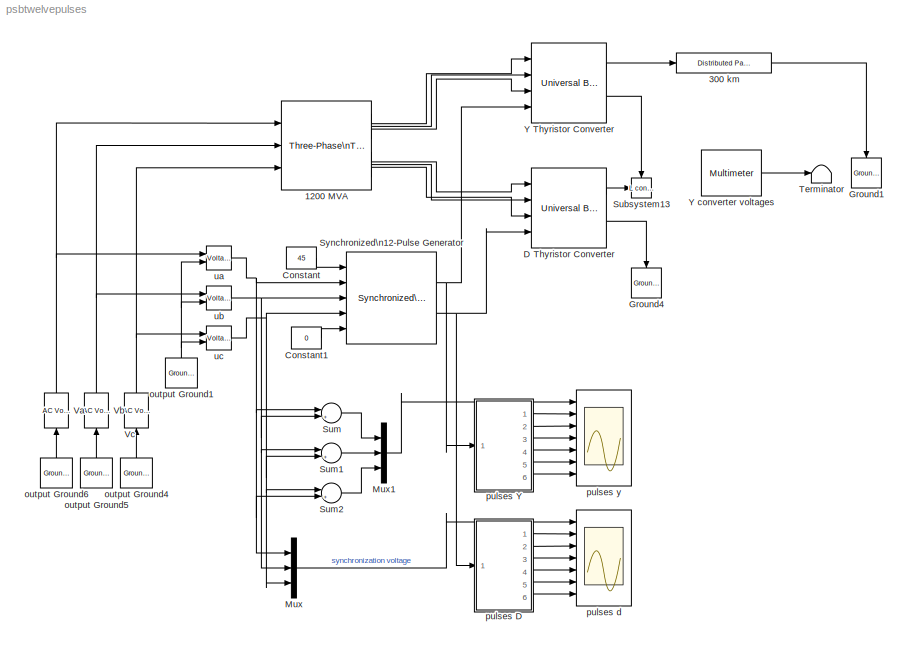
MODEL psbtwelvepulses
KIND model
CONFIG InitFcn = powericon('psbinitsys',bdroot);
BLOCK [Reference]  Synchronized\n12-Pulse Generator  REF=powerlib_extras/Control \nBlocks/ Synchronized\n12-Pulse Generator
  Double_Pulse = off
  Ports = [5, 2]
  SourceBlock = powerlib_extras/Control \nBlocks/ Synchronized\n12-Pulse Generator
  SourceType = Synchronized 12-pulse generator
  freq = 60
  pwidth = 20
BLOCK [Reference] 1200 MVA  REF=powerlib2/Elements/Three-Phase\nTransformer\n(Three Windings)
  PSBOutputType = 111111
  Ports = [3, 6]
  SourceBlock = powerlib2/Elements/Three-Phase\nTransformer\n(Three Windings)
  SourceType = Three-Phase Transformer (Three Windings)
  Tag = PoWeRsYsTeMbLoCk
  confi = ABC as input terminals
  hyst = off
  ifl = [0.8 -0.8 0.7]
  initialslopes = [+1 +1 +1]
  lm = 500
  matfile = 'basic_model'
  mesure = None
  nom = [ 1200e6 , 60 ]
  rmag = 500
  sat = [0 0; 1 1.2; 2 1.1]
  sif = off
  w1 = [ 500e3 0  0 ]
  w2 = [ 200e3 0 0]
  w3 = [ 200e3 0.001 0]
  ydw1 = Yg
  ydw2 = Y
  ydw3 = Delta (D1)
  ynsat = off
BLOCK [Reference] 300 km  REF=powerlib2/Elements/Distributed Parameters Line
  PSBOutputType = 111111111111111111111111111111
  Ports = [1, 1]
  SourceBlock = powerlib2/Elements/Distributed Parameters Line
  SourceType = Distributed Parameters Line
  Tag = PoWeRsYsTeMbLoCk
  c = 14.4e-9
  f = 60
  l = 0.792e-3
  lgt = 300
  mesure = Phase-to-ground voltages
  n = 1
  r = 0.015
  x1 = [0 0 0 0; 0.0001244 0 0 0; 0.0002488 0 0 0; 0.0003733 0 0 0; 0.0004977 0 0 0; 0.0006221 0 0 0]
  x2 = [0 0 0 0; 0.0001244 0 0 0; 0.0002488 0 0 0; 0.0003733 0 0 0; 0.0004977 0 0 0; 0.0006221 0 0 0]
  x3 = [0 0 0 0; 0.0001244 0 0 0; 0.0002488 0 0 0; 0.0003733 0 0 0; 0.0004977 0 0 0; 0.0006221 0 0 0]
  x4 = [0 0 0 0; 0.0001244 0 0 0; 0.0002488 0 0 0; 0.0003733 0 0 0; 0.0004977 0 0 0; 0.0006221 0 0 0]
  x5 = 0
BLOCK [Constant] Constant
  Value = 45
BLOCK [Constant] Constant1
  Value = 0
BLOCK [Reference] D Thyristor Converter  REF=powerlib2/Power\nElectronics/Universal Bridge
  Lon = 0
  PSBOutputType = 111
  Ports = [4, 2]
  Ron = 1e-3
  SourceBlock = powerlib2/Power\nElectronics/Universal Bridge
  SourceType = Universal Bridge
  Tag = PoWeRsYsTeMbLoCk
  VFs = [  0.8  0.8  ]
  Vf = 0
  arms = 3
  cf = inf
  confi = ABC as input terminals
  device = Thyristors
  gtoparameters = [ 10e-6 , 20e-6 ]
  igbtparameters = [ 1e-6 , 2e-6 ]
  injcc = 2000
  mesure = All voltages and currents
BLOCK [Reference] Ground1  REF=powerlib2/Connectors/Ground (input)
  Ports = [1]
  SourceBlock = powerlib2/Connectors/Ground (input)
  SourceType = Ground
  Tag = PoWeRsYsTeMbLoCk
BLOCK [Reference] Ground4  REF=powerlib2/Connectors/Ground (input)
  Ports = [1]
  SourceBlock = powerlib2/Connectors/Ground (input)
  SourceType = Ground
  Tag = PoWeRsYsTeMbLoCk
BLOCK [Mux] Mux
  DisplayOption = bar
  Inputs = 3
  Ports = [3, 1]
BLOCK [Mux] Mux1
  DisplayOption = bar
  Inputs = 3
  Ports = [3, 1]
BLOCK [Reference] Subsystem13  REF=powerlib2/Connectors/L connector
  Ports = [1, 0, 1]
  SourceBlock = powerlib2/Connectors/L connector
  SourceType = Bus Bar
  Tag = PoWeRsYsTeMbLoCk
BLOCK [Sum] Sum
  IconShape = round
  Inputs = |+-
  Ports = [2, 1]
BLOCK [Sum] Sum1
  IconShape = round
  Inputs = |+-
  Ports = [2, 1]
BLOCK [Sum] Sum2
  IconShape = round
  Inputs = |+-
  Ports = [2, 1]
BLOCK [Terminator] Terminator
BLOCK [Reference] Va  REF=powerlib2/Electrical\nSources/AC Voltage Source
  A = 500e3/sqrt(3)*sqrt(2)
  F = 60
  P = 0
  PSBOutputType = 1
  Ports = [1, 1]
  SourceBlock = powerlib2/Electrical\nSources/AC Voltage Source
  SourceType = AC Voltage Source
  Tag = PoWeRsYsTeMbLoCk
  mesure = None
  stime = 0
BLOCK [Reference] Vb  REF=powerlib2/Electrical\nSources/AC Voltage Source
  A = 500e3/sqrt(3)*sqrt(2)
  F = 60
  P = -120
  PSBOutputType = 1
  Ports = [1, 1]
  SourceBlock = powerlib2/Electrical\nSources/AC Voltage Source
  SourceType = AC Voltage Source
  Tag = PoWeRsYsTeMbLoCk
  mesure = None
  stime = 0
BLOCK [Reference] Vc  REF=powerlib2/Electrical\nSources/AC Voltage Source
  A = 500e3/sqrt(3)*sqrt(2)
  F = 60
  P = 120
  PSBOutputType = 1
  Ports = [1, 1]
  SourceBlock = powerlib2/Electrical\nSources/AC Voltage Source
  SourceType = AC Voltage Source
  Tag = PoWeRsYsTeMbLoCk
  mesure = None
  stime = 0
BLOCK [Reference] Y Thyristor Converter  REF=powerlib2/Power\nElectronics/Universal Bridge
  Lon = 0
  PSBOutputType = 111
  Ports = [4, 2]
  Ron = 1e-3
  SourceBlock = powerlib2/Power\nElectronics/Universal Bridge
  SourceType = Universal Bridge
  Tag = PoWeRsYsTeMbLoCk
  VFs = [  0.8  0.8  ]
  Vf = 0
  arms = 3
  cf = .1e-6
  confi = ABC as input terminals
  device = Thyristors
  gtoparameters = [ 10e-6 , 20e-6 ]
  igbtparameters = [ 1e-6 , 2e-6 ]
  injcc = 2000
  mesure = All voltages and currents
BLOCK [Reference] Y converter voltages   REF=powerlib2/Measurements/Multimeter
  AxesSetting = [0,0.1,-100,100]
  Display = 1
  Gain = [-1 -1 -1 -1 -1 -1 1]
  L = 32
  OutputType = Magnitude
  PSBOutputType = 1
  PSBequivalent = 0
  PhasorSimulation = off
  Ports = [0, 1]
  SavedBlockNames = -11
  SourceBlock = powerlib2/Measurements/Multimeter
  SourceType = MultimeterPSB
  Tag = PoWeRsYsTeMmEaSuReMeNt
  sel = [1 2 3 4 5 6 19]
  yselected = {'Usw1: D Thyristor Converter','Usw2: D Thyristor Converter','Usw3: D Thyristor Converter','Usw4: D Thyristor Converter','Usw5: D Thyristor Converter','Usw6: D Thyristor Converter','Us_ph1_gnd: 300 km'};
BLOCK [Reference] output Ground1  REF=powerlib2/Connectors/Ground (output)
  PSBOutputType = 1
  Ports = [0, 1]
  SourceBlock = powerlib2/Connectors/Ground (output)
  SourceType = Ground
  Tag = PoWeRsYsTeMbLoCk
BLOCK [Reference] output Ground4  REF=powerlib2/Connectors/Ground (output)
  PSBOutputType = 1
  Ports = [0, 1]
  SourceBlock = powerlib2/Connectors/Ground (output)
  SourceType = Ground
  Tag = PoWeRsYsTeMbLoCk
BLOCK [Reference] output Ground5  REF=powerlib2/Connectors/Ground (output)
  PSBOutputType = 1
  Ports = [0, 1]
  SourceBlock = powerlib2/Connectors/Ground (output)
  SourceType = Ground
  Tag = PoWeRsYsTeMbLoCk
BLOCK [Reference] output Ground6  REF=powerlib2/Connectors/Ground (output)
  PSBOutputType = 1
  Ports = [0, 1]
  SourceBlock = powerlib2/Connectors/Ground (output)
  SourceType = Ground
  Tag = PoWeRsYsTeMbLoCk
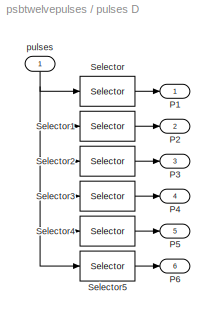
BLOCK [SubSystem] pulses D
  MinAlgLoopOccurrences = off
  Ports = [1, 6]
  RTWSystemCode = Auto
  TreatAsAtomicUnit = off
BLOCK [Outport] pulses D/P1
  IconDisplay = Port number
BLOCK [Outport] pulses D/P2
  IconDisplay = Port number
  Port = 2
BLOCK [Outport] pulses D/P3
  IconDisplay = Port number
  Port = 3
BLOCK [Outport] pulses D/P4
  IconDisplay = Port number
  Port = 4
BLOCK [Outport] pulses D/P5
  IconDisplay = Port number
  Port = 5
BLOCK [Outport] pulses D/P6
  IconDisplay = Port number
  Port = 6
BLOCK [Selector] pulses D/Selector
  InputPortWidth = 6
  Ports = [1, 1]
BLOCK [Selector] pulses D/Selector1
  Elements = 2
  InputPortWidth = 6
  Ports = [1, 1]
BLOCK [Selector] pulses D/Selector2
  Elements = 3
  InputPortWidth = 6
  Ports = [1, 1]
BLOCK [Selector] pulses D/Selector3
  Elements = 4
  InputPortWidth = 6
  Ports = [1, 1]
BLOCK [Selector] pulses D/Selector4
  Elements = 5
  InputPortWidth = 6
  Ports = [1, 1]
BLOCK [Selector] pulses D/Selector5
  Elements = 6
  InputPortWidth = 6
  Ports = [1, 1]
BLOCK [Inport] pulses D/pulses
  IconDisplay = Port number
  LatchInput = off
  Port = 1
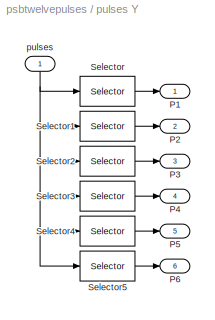
BLOCK [SubSystem] pulses Y
  MinAlgLoopOccurrences = off
  Ports = [1, 6]
  RTWSystemCode = Auto
  TreatAsAtomicUnit = off
BLOCK [Outport] pulses Y/P1
  IconDisplay = Port number
BLOCK [Outport] pulses Y/P2
  IconDisplay = Port number
  Port = 2
BLOCK [Outport] pulses Y/P3
  IconDisplay = Port number
  Port = 3
BLOCK [Outport] pulses Y/P4
  IconDisplay = Port number
  Port = 4
BLOCK [Outport] pulses Y/P5
  IconDisplay = Port number
  Port = 5
BLOCK [Outport] pulses Y/P6
  IconDisplay = Port number
  Port = 6
BLOCK [Selector] pulses Y/Selector
  InputPortWidth = 6
  Ports = [1, 1]
BLOCK [Selector] pulses Y/Selector1
  Elements = 2
  InputPortWidth = 6
  Ports = [1, 1]
BLOCK [Selector] pulses Y/Selector2
  Elements = 3
  InputPortWidth = 6
  Ports = [1, 1]
BLOCK [Selector] pulses Y/Selector3
  Elements = 4
  InputPortWidth = 6
  Ports = [1, 1]
BLOCK [Selector] pulses Y/Selector4
  Elements = 5
  InputPortWidth = 6
  Ports = [1, 1]
BLOCK [Selector] pulses Y/Selector5
  Elements = 6
  InputPortWidth = 6
  Ports = [1, 1]
BLOCK [Inport] pulses Y/pulses
  IconDisplay = Port number
  LatchInput = off
  Port = 1
BLOCK [Scope] pulses d
  DataFormat = StructureWithTime
  LimitDataPoints = off
  NumInputPorts = 7
  Ports = [7]
  SampleInput = on
  SampleTime = 1/60/512
  SaveName = VI_scope1
  SaveToWorkspace = on
  TimeRange = 0.035
  YMax = 500000~1~1~1~1~1~1
  YMin = -500000~0~0~0~0~0~0
  ZoomMode = xonly
BLOCK [Scope] pulses y
  DataFormat = StructureWithTime
  LimitDataPoints = off
  NumInputPorts = 7
  Ports = [7]
  SampleInput = on
  SampleTime = 1/60/512
  SaveName = VI_scope
  SaveToWorkspace = on
  TimeRange = 0.1
  YMax = 500000~1~1~1~1~1~1
  YMin = -500000~0~0~0~0~0~0
  ZoomMode = xonly
BLOCK [Reference] ua  REF=powerlib2/Measurements/Voltage Measurement
  OutputType = Magnitude
  PSBOutputType = 0
  PSBequivalent = 0
  PhasorSimulation = off
  Ports = [2, 1]
  SourceBlock = powerlib2/Measurements/Voltage Measurement
  SourceType = Voltage Measurement
  Tag = PoWeRsYsTeMmEaSuReMeNt
BLOCK [Reference] ub  REF=powerlib2/Measurements/Voltage Measurement
  OutputType = Magnitude
  PSBOutputType = 0
  PSBequivalent = 0
  PhasorSimulation = off
  Ports = [2, 1]
  SourceBlock = powerlib2/Measurements/Voltage Measurement
  SourceType = Voltage Measurement
  Tag = PoWeRsYsTeMmEaSuReMeNt
BLOCK [Reference] uc  REF=powerlib2/Measurements/Voltage Measurement
  OutputType = Magnitude
  PSBOutputType = 0
  PSBequivalent = 0
  PhasorSimulation = off
  Ports = [2, 1]
  SourceBlock = powerlib2/Measurements/Voltage Measurement
  SourceType = Voltage Measurement
  Tag = PoWeRsYsTeMmEaSuReMeNt
NET  Synchronized\n12-Pulse Generator:1 -> Y Thyristor Converter:4, pulses Y:1
NET  Synchronized\n12-Pulse Generator:2 -> D Thyristor Converter:4, pulses D:1
LINE 1200 MVA:1 -> Y Thyristor Converter:1
LINE 1200 MVA:2 -> Y Thyristor Converter:2
LINE 1200 MVA:3 -> Y Thyristor Converter:3
LINE 1200 MVA:4 -> D Thyristor Converter:1
LINE 1200 MVA:5 -> D Thyristor Converter:2
LINE 1200 MVA:6 -> D Thyristor Converter:3
LINE 300 km:1 -> Ground1:1
LINE Constant1:1 ->  Synchronized\n12-Pulse Generator:5
LINE Constant:1 ->  Synchronized\n12-Pulse Generator:1
LINE D Thyristor Converter:1 -> Subsystem13:1
LINE D Thyristor Converter:2 -> Ground4:1
LINE Mux1:1 -> pulses y:1
LINE Mux:1 -> pulses d:1
LINE Sum1:1 -> Mux1:2
LINE Sum2:1 -> Mux1:3
LINE Sum:1 -> Mux1:1
NET Va:1 -> 1200 MVA:1, ua:1
NET Vb:1 -> 1200 MVA:2, ub:1
NET Vc:1 -> 1200 MVA:3, uc:1
LINE Y Thyristor Converter:1 -> 300 km:1
LINE Y Thyristor Converter:2 -> Subsystem13:enable
LINE Y converter voltages :1 -> Terminator:1
NET output Ground1:1 -> ua:2, ub:2, uc:2
LINE output Ground4:1 -> Vc:1
LINE output Ground5:1 -> Vb:1
LINE output Ground6:1 -> Va:1
LINE pulses D/Selector1:1 -> pulses D/P2:1
LINE pulses D/Selector2:1 -> pulses D/P3:1
LINE pulses D/Selector3:1 -> pulses D/P4:1
LINE pulses D/Selector4:1 -> pulses D/P5:1
LINE pulses D/Selector5:1 -> pulses D/P6:1
LINE pulses D/Selector:1 -> pulses D/P1:1
NET pulses D/pulses:1 -> pulses D/Selector1:1, pulses D/Selector2:1, pulses D/Selector3:1, pulses D/Selector4:1, pulses D/Selector5:1, pulses D/Selector:1
LINE pulses D:1 -> pulses d:2
LINE pulses D:2 -> pulses d:3
LINE pulses D:3 -> pulses d:4
LINE pulses D:4 -> pulses d:5
LINE pulses D:5 -> pulses d:6
LINE pulses D:6 -> pulses d:7
LINE pulses Y/Selector1:1 -> pulses Y/P2:1
LINE pulses Y/Selector2:1 -> pulses Y/P3:1
LINE pulses Y/Selector3:1 -> pulses Y/P4:1
LINE pulses Y/Selector4:1 -> pulses Y/P5:1
LINE pulses Y/Selector5:1 -> pulses Y/P6:1
LINE pulses Y/Selector:1 -> pulses Y/P1:1
NET pulses Y/pulses:1 -> pulses Y/Selector1:1, pulses Y/Selector2:1, pulses Y/Selector3:1, pulses Y/Selector4:1, pulses Y/Selector5:1, pulses Y/Selector:1
LINE pulses Y:1 -> pulses y:2
LINE pulses Y:2 -> pulses y:3
LINE pulses Y:3 -> pulses y:4
LINE pulses Y:4 -> pulses y:5
LINE pulses Y:5 -> pulses y:6
LINE pulses Y:6 -> pulses y:7
NET ua:1 ->  Synchronized\n12-Pulse Generator:2, Mux:1, Sum2:2, Sum:1
NET ub:1 ->  Synchronized\n12-Pulse Generator:3, Mux:2, Sum1:1, Sum:2
NET uc:1 ->  Synchronized\n12-Pulse Generator:4, Mux:3, Sum1:2, Sum2:1
note: NET lines group one-source signal fan-out (src -> all destinations, sorted); 1:1 wires keep LINE
